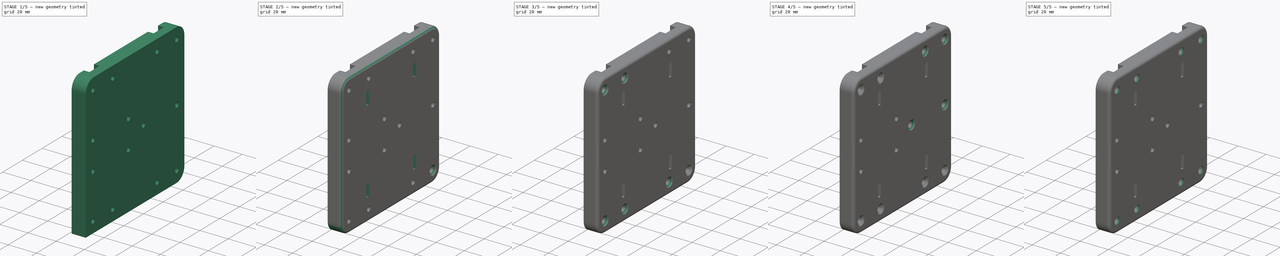
[diagram: build sequence overview — one tinted view per stage of 5, left to right]
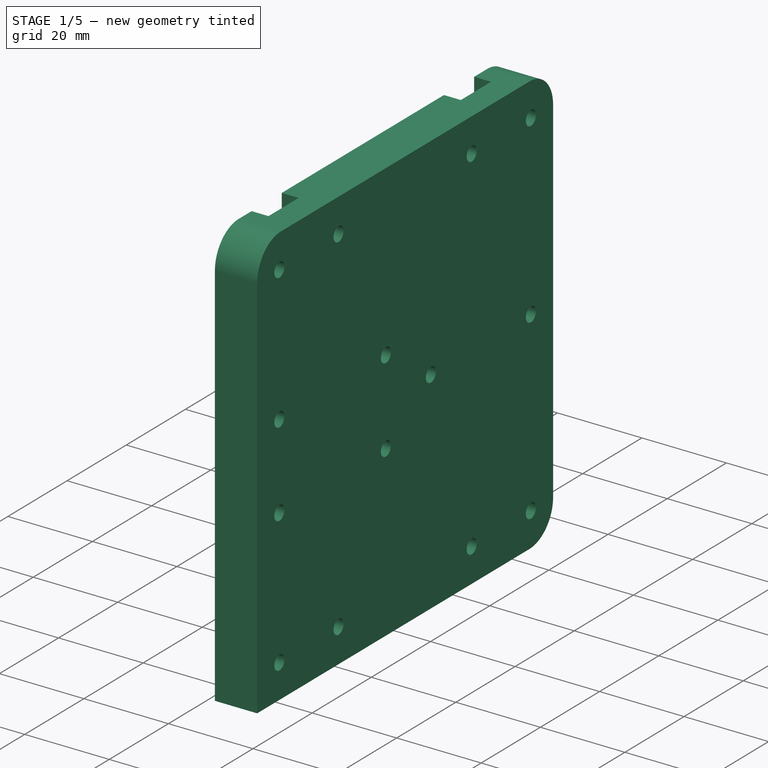
[diagram: stage 1 of 5 — iso view after this stage's code; geometry added in this stage tinted green]
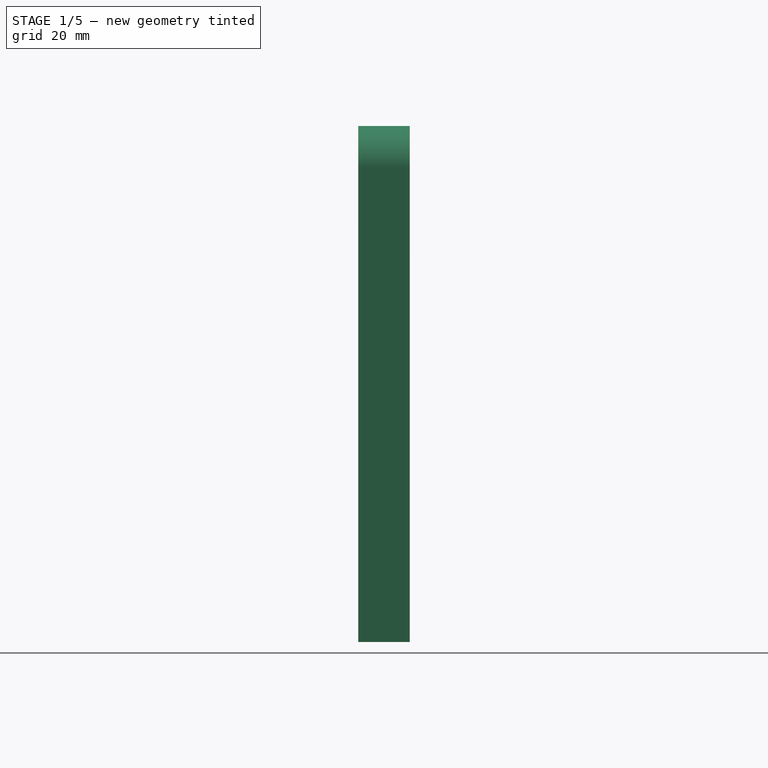
[diagram: stage 1 of 5 — front view after this stage's code; geometry added in this stage tinted green]
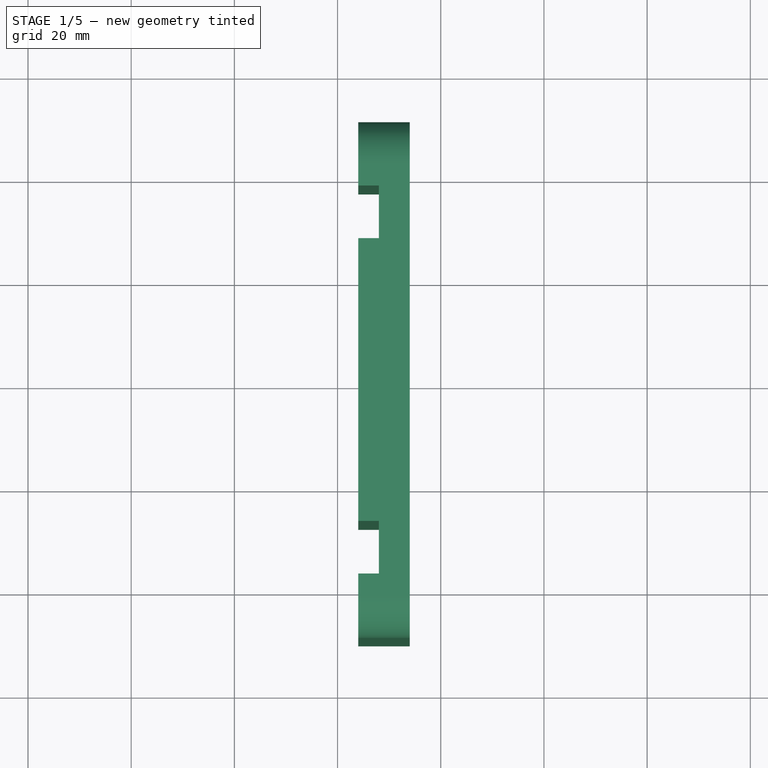
[diagram: stage 1 of 5 — top view after this stage's code; geometry added in this stage tinted green]
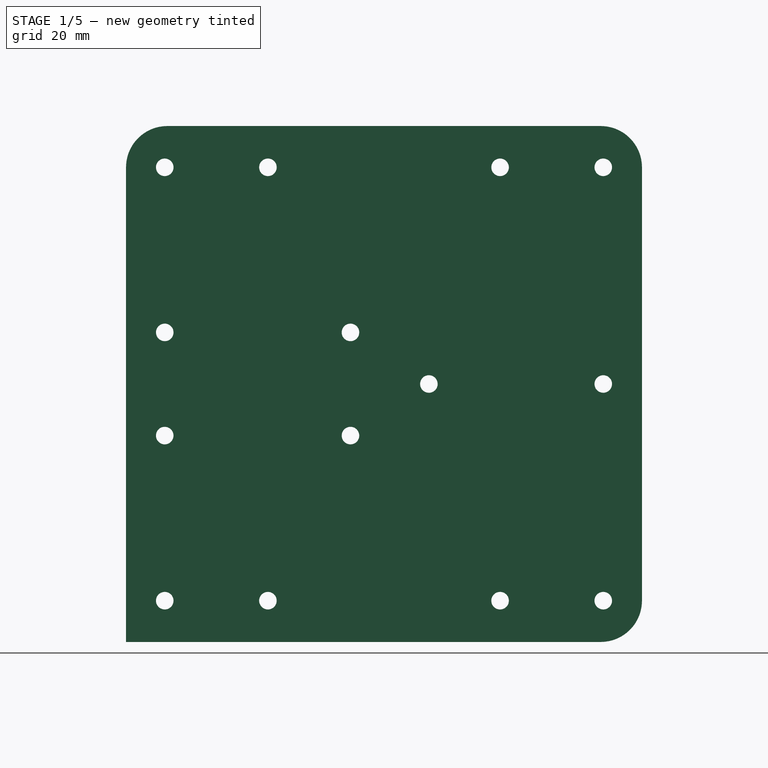
[diagram: stage 1 of 5 — right view after this stage's code; geometry added in this stage tinted green]
FCSTD DOCUMENT  (FreeCAD 0.16R6706 (Git))
Label: BatteryMount
License: All rights reserved
LicenseURL: http://en.wikipedia.org/wiki/All_rights_reserved
objects: PartDesign::Chamfer×14, PartDesign::Fillet×5, Sketcher::SketchObject×4, PartDesign::Pocket×3, PartDesign::Pad×1
note: 31 computed .brp shape members not serialized (recipe doc carries the construction recipe); baked Part::Feature solids carry a one-line shape summary decoded from their .brp

FEATURE [Sketcher::SketchObject] Sketch001
  Placement = pos=(-86,0,0) rot=(0.57735,-0.57735,-0.57735;2.0944rad)
  sketch-geometry (36):
    g0: LineSegment StartX=-50 StartY=50 StartZ=0 EndX=50 EndY=50 EndZ=0
    g1: LineSegment StartX=50 StartY=50 StartZ=0 EndX=50 EndY=-50 EndZ=0
    g2: LineSegment StartX=50 StartY=-50 StartZ=0 EndX=-50 EndY=-50 EndZ=0
    g3: LineSegment StartX=-50 StartY=-50 StartZ=0 EndX=-50 EndY=50 EndZ=0
    g4: Circle CenterX=42.5 CenterY=42 CenterZ=0 NormalX=0 NormalY=0 NormalZ=1 Radius=1.7
    g5: Circle CenterX=42.5 CenterY=-42 CenterZ=0 NormalX=0 NormalY=0 NormalZ=1 Radius=1.7
    g6: Circle CenterX=22.5 CenterY=42 CenterZ=0 NormalX=0 NormalY=0 NormalZ=1 Radius=1.7
    g7: Circle CenterX=22.5 CenterY=-42 CenterZ=0 NormalX=0 NormalY=0 NormalZ=1 Radius=1.7
    g8: Circle CenterX=-22.5 CenterY=42 CenterZ=0 NormalX=0 NormalY=0 NormalZ=1 Radius=1.7
    g9: Circle CenterX=-42.5 CenterY=42 CenterZ=0 NormalX=0 NormalY=0 NormalZ=1 Radius=1.7
    g10: Circle CenterX=-42.5 CenterY=-42 CenterZ=0 NormalX=0 NormalY=0 NormalZ=1 Radius=1.7
    g11: Circle CenterX=-22.5 CenterY=-42 CenterZ=0 NormalX=0 NormalY=0 NormalZ=1 Radius=1.7
    g12: LineSegment [constr] StartX=42.5 StartY=42 StartZ=0 EndX=-42.5 EndY=42 EndZ=0
    g13: LineSegment [constr] StartX=-42.5 StartY=42 StartZ=0 EndX=-42.5 EndY=-42 EndZ=0
    g14: LineSegment [constr] StartX=-42.5 StartY=-42 StartZ=0 EndX=42.5 EndY=-42 EndZ=0
    g15: LineSegment [constr] StartX=42.5 StartY=-42 StartZ=0 EndX=42.5 EndY=42 EndZ=0
    g16: LineSegment [constr] StartX=-22.5 StartY=-42 StartZ=0 EndX=-22.5 EndY=42 EndZ=0
    g17: LineSegment [constr] StartX=22.5 StartY=42 StartZ=0 EndX=22.5 EndY=-42 EndZ=0
    g18: GeomPoint [constr] X=-32.5 Y=42 Z=0
    g19: GeomPoint [constr] X=32.5 Y=42 Z=0
    g20: LineSegment [constr] StartX=42.5 StartY=10 StartZ=0 EndX=6.5 EndY=10 EndZ=0
    g21: LineSegment [constr] StartX=6.5 StartY=10 StartZ=0 EndX=6.5 EndY=-10 EndZ=0
    g22: LineSegment [constr] StartX=6.5 StartY=-10 StartZ=0 EndX=42.5 EndY=-10 EndZ=0
    g23: LineSegment [constr] StartX=42.5 StartY=-10 StartZ=0 EndX=42.5 EndY=10 EndZ=0
    g24: Circle CenterX=6.5 CenterY=10 CenterZ=0 NormalX=0 NormalY=0 NormalZ=1 Radius=1.7
    g25: Circle CenterX=42.5 CenterY=10 CenterZ=0 NormalX=0 NormalY=0 NormalZ=1 Radius=1.7
    g26: Circle CenterX=6.5 CenterY=-10 CenterZ=0 NormalX=0 NormalY=0 NormalZ=1 Radius=1.7
    g27: Circle CenterX=42.5 CenterY=-10 CenterZ=0 NormalX=0 NormalY=0 NormalZ=1 Radius=1.7
    g28: Circle CenterX=-42.5 CenterY=0 CenterZ=0 NormalX=0 NormalY=0 NormalZ=1 Radius=1.7
    g29: Circle CenterX=-8.7 CenterY=0 CenterZ=0 NormalX=0 NormalY=0 NormalZ=1 Radius=1.7
    g30: LineSegment [constr] StartX=-42.5 StartY=0 StartZ=0 EndX=-8.7 EndY=0 EndZ=0
    g31: LineSegment [constr] StartX=-46.6 StartY=21 StartZ=0 EndX=-4.6 EndY=21 EndZ=0
    g32: LineSegment [constr] StartX=-4.6 StartY=21 StartZ=0 EndX=-4.6 EndY=-21 EndZ=0
    g33: LineSegment [constr] StartX=-4.6 StartY=-21 StartZ=0 EndX=-46.6 EndY=-21 EndZ=0
    g34: LineSegment [constr] StartX=-46.6 StartY=-21 StartZ=0 EndX=-46.6 EndY=21 EndZ=0
    g35: GeomPoint [constr] X=-25.6 Y=0 Z=0
  constraints (90):
    c: Coincident(g0,g1)
    c: Coincident(g1,g2)
    c: Coincident(g2,g3)
    c: Coincident(g3,g0)
    c: Horizontal(g0)
    c: Horizontal(g2)
    c: Vertical(g1)
    c: Vertical(g3)
    c: Symmetric(g2,g1,g-2)
    c: DistanceX(g2,g1) = 100
    c: Coincident(g12,g13)
    c: Coincident(g13,g14)
    c: Coincident(g14,g15)
    c: Coincident(g15,g12)
    c: Horizontal(g12)
    c: Vertical(g13)
    c: Vertical(g15)
    c: Coincident(g12,g4)
    c: Coincident(g13,g10)
    c: Coincident(g12,g9)
    c: Coincident(g5,g14)
    c: Coincident(g16,g11)
    c: Coincident(g16,g8)
    c: Vertical(g16)
    c: Coincident(g17,g6)
    c: Coincident(g17,g7)
    c: Vertical(g17)
    c: PointOnObject(g7,g14)
    c: PointOnObject(g6,g12)
    c: PointOnObject(g8,g12)
    c: PointOnObject(g11,g14)
    c: Radius(g10) = 1.7
    c: Equal(g10,g8)
    c: Equal(g10,g11)
    c: Equal(g10,g6)
    c: Equal(g10,g7)
    c: Equal(g10,g5)
    c: Symmetric(g11,g7,g-2)
    c: Symmetric(g10,g5,g-2)
    c: DistanceX(g7,g5) = 20
    c: Symmetric(g8,g9,g18)
    c: Symmetric(g4,g6,g19)
    c: DistanceX(g18,g19) = 65
    c: DistanceY(g2,g0) = 100
    c: DistanceY(g2,g10) = 8
    c: DistanceY(g9,g0) = 8
    c: Symmetric(g2,g0,g-1)
    c: Coincident(g20,g21)
    c: Coincident(g21,g22)
    c: Coincident(g22,g23)
    c: Coincident(g23,g20)
    c: Horizontal(g20)
    c: Horizontal(g22)
    c: Vertical(g21)
    c: Vertical(g23)
    c: DistanceX(g20,g20) = 36
    c: DistanceY(g21,g21) = 20
    c: Coincident(g24,g20)
    c: Coincident(g25,g20)
    c: Coincident(g26,g21)
    c: Coincident(g27,g22)
    c: Radius(g25) = 1.7
    c: Equal(g25,g27)
    c: Equal(g25,g26)
    c: Equal(g25,g24)
    c: DistanceX(g20,g0) = 7.5
    c: Symmetric(g21,g20,g-1)
    c: PointOnObject(g22,g15)
    c: Radius(g29) = 1.7
    c: Equal(g29,g28)
    c: Coincident(g30,g28)
    c: Coincident(g30,g29)
    c: Horizontal(g30)
    c: DistanceX(g28,g29) = 33.8
    c: PointOnObject(g28,g-1)
    c: PointOnObject(g28,g13)
    c: Coincident(g31,g32)
    c: Coincident(g32,g33)
    c: Coincident(g33,g34)
    c: Coincident(g34,g31)
    c: Horizontal(g31)
    c: Horizontal(g33)
    c: Vertical(g32)
    c: Vertical(g34)
    c: DistanceY(g33,g31) = 42
    c: Equal(g31,g34)
    c: Symmetric(g29,g28,g35)
    c: Symmetric(g33,g31,g35)
    c: Equal(g9,g6)
    c: Equal(g6,g4)
FEATURE [PartDesign::Pad] Pad
  Length = 10
  Length2 = 100
  Placement = pos=(-86,0,0) rot=(0.57735,-0.57735,-0.57735;2.0944rad)
  Sketch = -> Sketch001
  Type = 0
FEATURE [Sketcher::SketchObject] Sketch004  label="Sketch002"
  Placement = pos=(-96,0,0) rot=(0.57735,-0.57735,-0.57735;2.0944rad)
  Support = -> Pad [Face20]
  sketch-geometry (12):
    g0: LineSegment StartX=-37.6 StartY=50 StartZ=0 EndX=-27.4 EndY=50 EndZ=0
    g1: LineSegment StartX=-27.4 StartY=50 StartZ=0 EndX=-27.4 EndY=-50 EndZ=0
    g2: LineSegment StartX=-27.4 StartY=-50 StartZ=0 EndX=-37.6 EndY=-50 EndZ=0
    g3: LineSegment StartX=-37.6 StartY=-50 StartZ=0 EndX=-37.6 EndY=50 EndZ=0
    g4: LineSegment StartX=27.4 StartY=50 StartZ=0 EndX=37.6 EndY=50 EndZ=0
    g5: LineSegment StartX=37.6 StartY=50 StartZ=0 EndX=37.6 EndY=-50 EndZ=0
    g6: LineSegment StartX=37.6 StartY=-50 StartZ=0 EndX=27.4 EndY=-50 EndZ=0
    g7: LineSegment StartX=27.4 StartY=-50 StartZ=0 EndX=27.4 EndY=50 EndZ=0
    g8: LineSegment [constr] StartX=-27.4 StartY=-50 StartZ=0 EndX=27.4 EndY=-50 EndZ=0
    g9: LineSegment [constr] StartX=-27.4 StartY=50 StartZ=0 EndX=27.4 EndY=50 EndZ=0
    g10: GeomPoint [constr] X=-32.5 Y=50 Z=0
    g11: GeomPoint [constr] X=32.5 Y=50 Z=0
  constraints (30):
    c: Coincident(g0,g1)
    c: Coincident(g1,g2)
    c: Coincident(g2,g3)
    c: Coincident(g3,g0)
    c: Horizontal(g0)
    c: Horizontal(g2)
    c: Vertical(g1)
    c: Vertical(g3)
    c: Coincident(g4,g5)
    c: Coincident(g5,g6)
    c: Coincident(g6,g7)
    c: Coincident(g7,g4)
    c: Horizontal(g4)
    c: Horizontal(g6)
    c: Vertical(g5)
    c: Vertical(g7)
    c: DistanceX(g0,g0) = 10.2
    c: DistanceX(g4,g4) = 10.2
    c: Coincident(g8,g1)
    c: Horizontal(g8)
    c: Coincident(g6,g8)
    c: Coincident(g9,g0)
    c: Horizontal(g9)
    c: Coincident(g9,g4)
    c: DistanceY(g2,g0) = 100
    c: Symmetric(g4,g4,g11)
    c: Symmetric(g0,g0,g10)
    c: DistanceX(g10,g11) = 65
    c: Symmetric(g4,g0,g-2)
    c: Symmetric(g1,g0,g-1)
FEATURE [PartDesign::Pocket] Pocket
  Length = 4
  Placement = pos=(-86,0,0) rot=(0.57735,-0.57735,-0.57735;2.0944rad)
  Sketch = -> Sketch004
  Type = 0
FEATURE [PartDesign::Fillet] Fillet
  Base = -> Pocket [Edge2]
  Placement = pos=(-86,0,0) rot=(0.57735,-0.57735,-0.57735;2.0944rad)
  Radius = 8
FEATURE [PartDesign::Fillet] Fillet001
  Base = -> Fillet [Edge33]
  Placement = pos=(-86,0,0) rot=(0.57735,-0.57735,-0.57735;2.0944rad)
  Radius = 8
FEATURE [PartDesign::Fillet] Fillet002
  Base = -> Fillet001 [Edge22]
  Placement = pos=(-86,0,0) rot=(0.57735,-0.57735,-0.57735;2.0944rad)
  Radius = 8
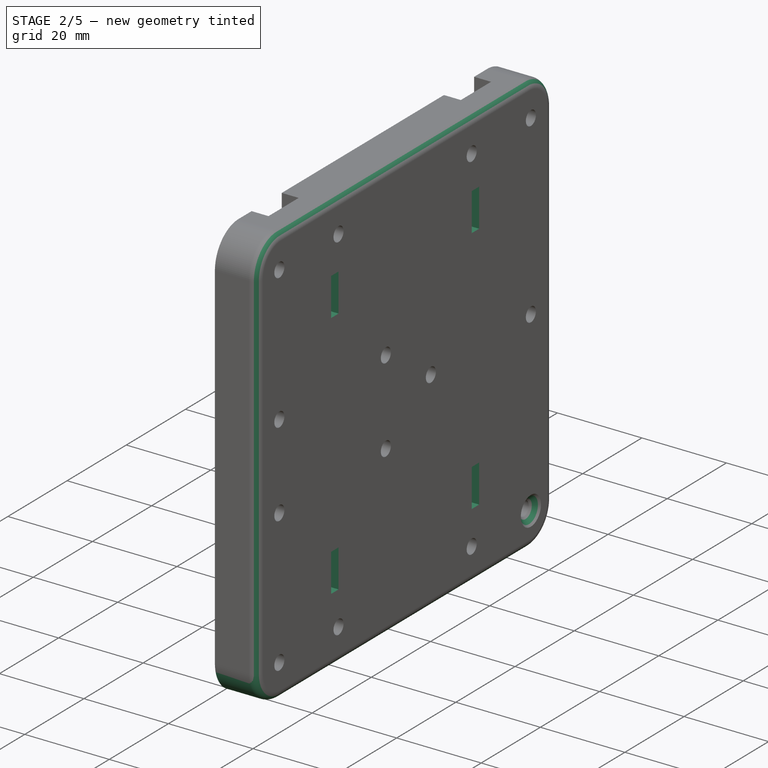
[diagram: stage 2 of 5 — iso view after this stage's code; geometry added in this stage tinted green]
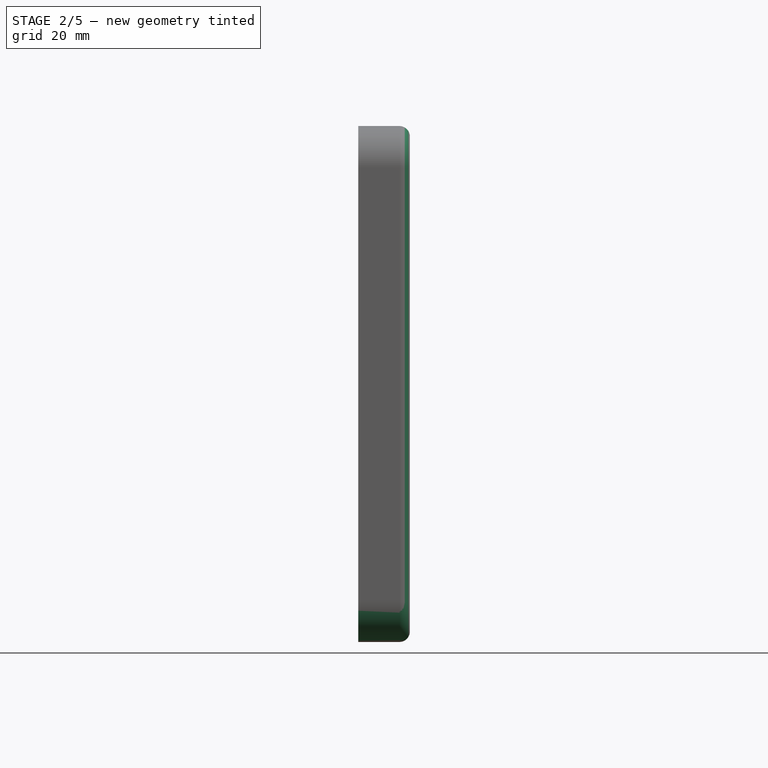
[diagram: stage 2 of 5 — front view after this stage's code; geometry added in this stage tinted green]
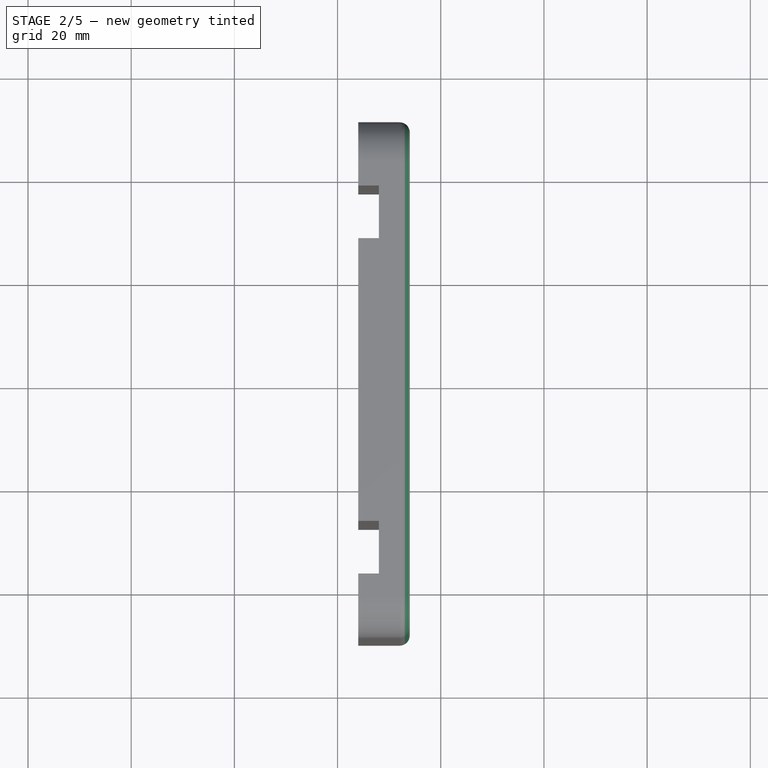
[diagram: stage 2 of 5 — top view after this stage's code; geometry added in this stage tinted green]
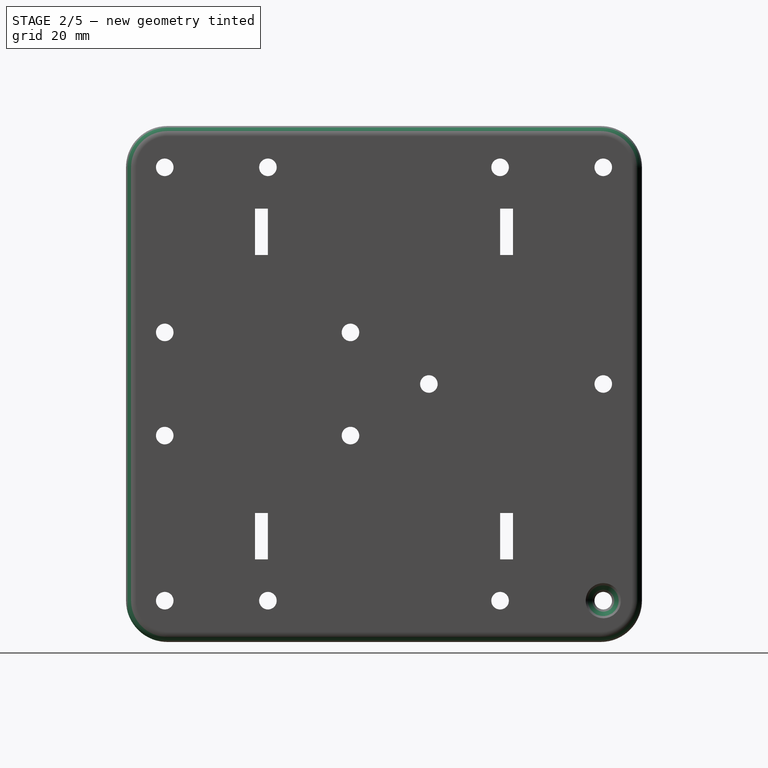
[diagram: stage 2 of 5 — right view after this stage's code; geometry added in this stage tinted green]
FEATURE [PartDesign::Fillet] Fillet003
  Base = -> Fillet002 [Edge39]
  Placement = pos=(-86,0,0) rot=(0.57735,-0.57735,-0.57735;2.0944rad)
  Radius = 8
FEATURE [PartDesign::Fillet] Fillet004
  Base = -> Fillet003 [Edge1]
  Placement = pos=(-86,0,0) rot=(0.57735,-0.57735,-0.57735;2.0944rad)
  Radius = 2
FEATURE [Sketcher::SketchObject] Sketch
  Placement = pos=(-86,0,0) rot=(-0.57735,0.57735,-0.57735;2.0944rad)
  Support = -> Fillet004 [Face1]
  sketch-geometry (22):
    g0: LineSegment StartX=-25 StartY=34 StartZ=0 EndX=-22.5 EndY=34 EndZ=0
    g1: LineSegment StartX=-22.5 StartY=34 StartZ=0 EndX=-22.5 EndY=25 EndZ=0
    g2: LineSegment StartX=-22.5 StartY=25 StartZ=0 EndX=-25 EndY=25 EndZ=0
    g3: LineSegment StartX=-25 StartY=25 StartZ=0 EndX=-25 EndY=34 EndZ=0
    g4: LineSegment StartX=22.5 StartY=34 StartZ=0 EndX=25 EndY=34 EndZ=0
    g5: LineSegment StartX=25 StartY=34 StartZ=0 EndX=25 EndY=25 EndZ=0
    g6: LineSegment StartX=25 StartY=25 StartZ=0 EndX=22.5 EndY=25 EndZ=0
    g7: LineSegment StartX=22.5 StartY=25 StartZ=0 EndX=22.5 EndY=34 EndZ=0
    g8: LineSegment StartX=-25 StartY=-25 StartZ=0 EndX=-22.5 EndY=-25 EndZ=0
    g9: LineSegment StartX=-22.5 StartY=-25 StartZ=0 EndX=-22.5 EndY=-34 EndZ=0
    g10: LineSegment StartX=-22.5 StartY=-34 StartZ=0 EndX=-25 EndY=-34 EndZ=0
    g11: LineSegment StartX=-25 StartY=-34 StartZ=0 EndX=-25 EndY=-25 EndZ=0
    g12: LineSegment StartX=22.5 StartY=-25 StartZ=0 EndX=25 EndY=-25 EndZ=0
    g13: LineSegment StartX=25 StartY=-25 StartZ=0 EndX=25 EndY=-34 EndZ=0
    g14: LineSegment StartX=25 StartY=-34 StartZ=0 EndX=22.5 EndY=-34 EndZ=0
    g15: LineSegment StartX=22.5 StartY=-34 StartZ=0 EndX=22.5 EndY=-25 EndZ=0
    g16: LineSegment [constr] StartX=25 StartY=25 StartZ=0 EndX=25 EndY=-25 EndZ=0
    g17: LineSegment [constr] StartX=22.5 StartY=-34 StartZ=0 EndX=-22.5 EndY=-34 EndZ=0
    g18: LineSegment [constr] StartX=-25 StartY=-25 StartZ=0 EndX=-25 EndY=25 EndZ=0
    g19: LineSegment [constr] StartX=-22.5 StartY=34 StartZ=0 EndX=22.5 EndY=34 EndZ=0
    g20: LineSegment [constr] StartX=-22.5 StartY=-25 StartZ=0 EndX=-22.5 EndY=25 EndZ=0
    g21: LineSegment [constr] StartX=22.5 StartY=25 StartZ=0 EndX=22.5 EndY=-25 EndZ=0
  constraints (59):
    c: Coincident(g0,g1)
    c: Coincident(g1,g2)
    c: Coincident(g2,g3)
    c: Coincident(g3,g0)
    c: Horizontal(g0)
    c: Horizontal(g2)
    c: Vertical(g1)
    c: Vertical(g3)
    c: Coincident(g4,g5)
    c: Coincident(g5,g6)
    c: Coincident(g6,g7)
    c: Coincident(g7,g4)
    c: Horizontal(g4)
    c: Horizontal(g6)
    c: Vertical(g5)
    c: Vertical(g7)
    c: Coincident(g8,g9)
    c: Coincident(g9,g10)
    c: Coincident(g10,g11)
    c: Coincident(g11,g8)
    c: Horizontal(g8)
    c: Horizontal(g10)
    c: Vertical(g9)
    c: Vertical(g11)
    c: Coincident(g12,g13)
    c: Coincident(g13,g14)
    c: Coincident(g14,g15)
    c: Coincident(g15,g12)
    c: Horizontal(g12)
    c: Horizontal(g14)
    c: Vertical(g13)
    c: Vertical(g15)
    c: DistanceX(g4,g4) = 2.5
    c: Equal(g0,g4)
    c: Equal(g4,g12)
    c: Equal(g12,g8)
    c: Equal(g9,g1)
    c: Equal(g1,g5)
    c: Equal(g5,g13)
    c: DistanceY(g5,g5) = 9
    c: Coincident(g16,g5)
    c: Coincident(g16,g12)
    c: Coincident(g17,g9)
    c: Horizontal(g17)
    c: Coincident(g18,g8)
    c: Coincident(g18,g2)
    c: Coincident(g19,g0)
    c: Coincident(g19,g4)
    c: Horizontal(g19)
    c: Vertical(g16)
    c: Vertical(g18)
    c: Symmetric(g10,g4,g-1)
    c: Coincident(g14,g17)
    c: Coincident(g20,g8)
    c: Coincident(g20,g1)
    c: Coincident(g21,g6)
    c: Coincident(g21,g12)
    c: DistanceX(g9,g14) = 45
    c: DistanceY(g8,g2) = 50
FEATURE [PartDesign::Pocket] Pocket002
  Length = 5
  Placement = pos=(-86,0,0) rot=(0.57735,-0.57735,-0.57735;2.0944rad)
  Sketch = -> Sketch
  Type = 1
FEATURE [PartDesign::Chamfer] Chamfer
  Base = -> Pocket002 [Edge34]
  Placement = pos=(-86,0,0) rot=(0.57735,-0.57735,-0.57735;2.0944rad)
  Size = 1.7
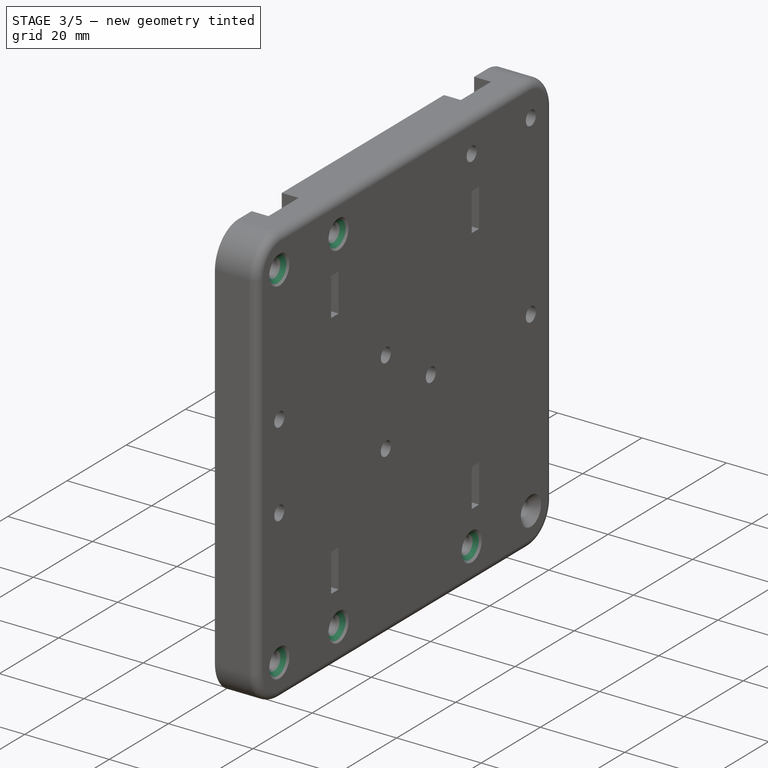
[diagram: stage 3 of 5 — iso view after this stage's code; geometry added in this stage tinted green]
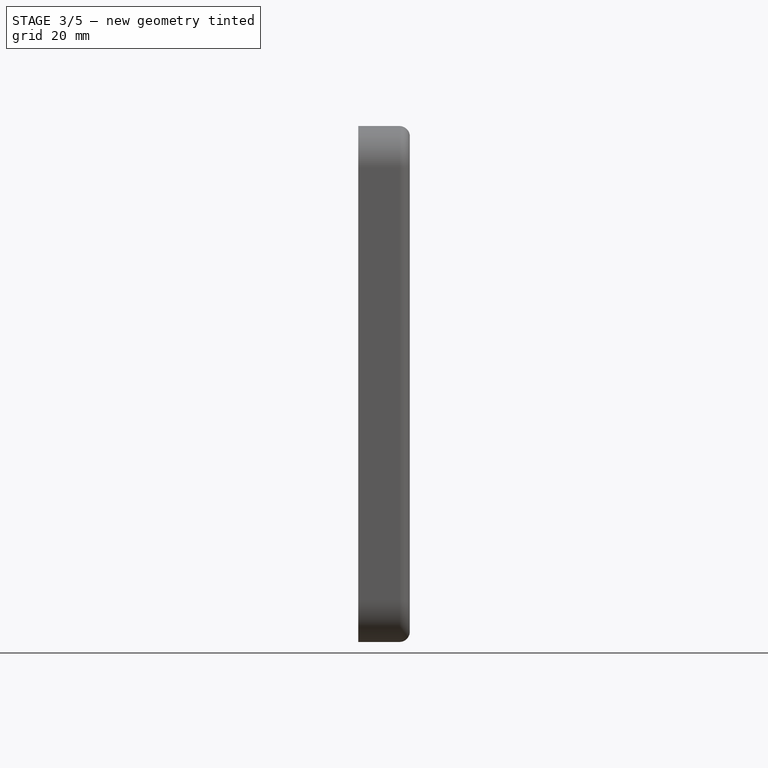
[diagram: stage 3 of 5 — front view after this stage's code; geometry added in this stage tinted green]
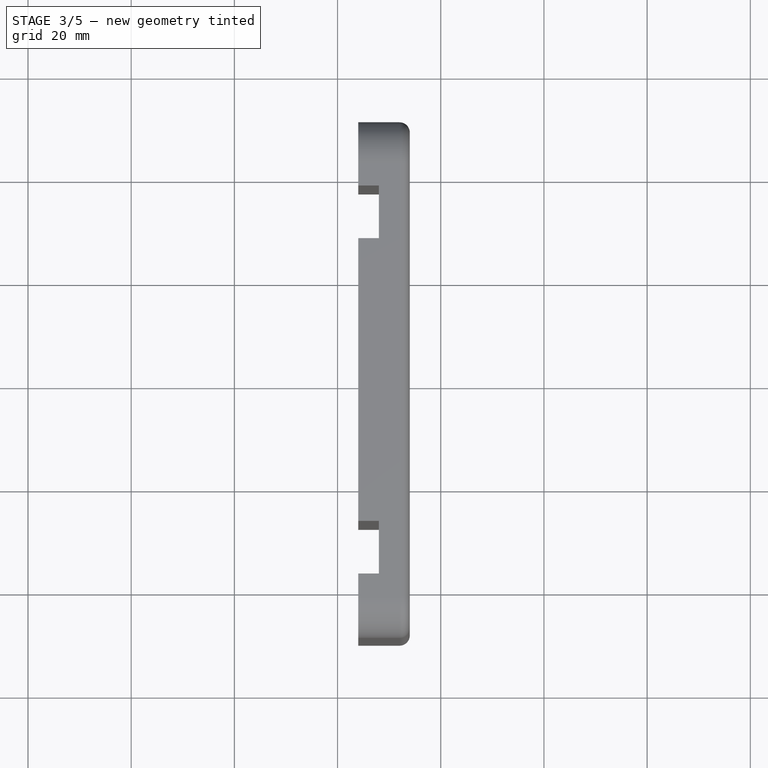
[diagram: stage 3 of 5 — top view after this stage's code; geometry added in this stage tinted green]
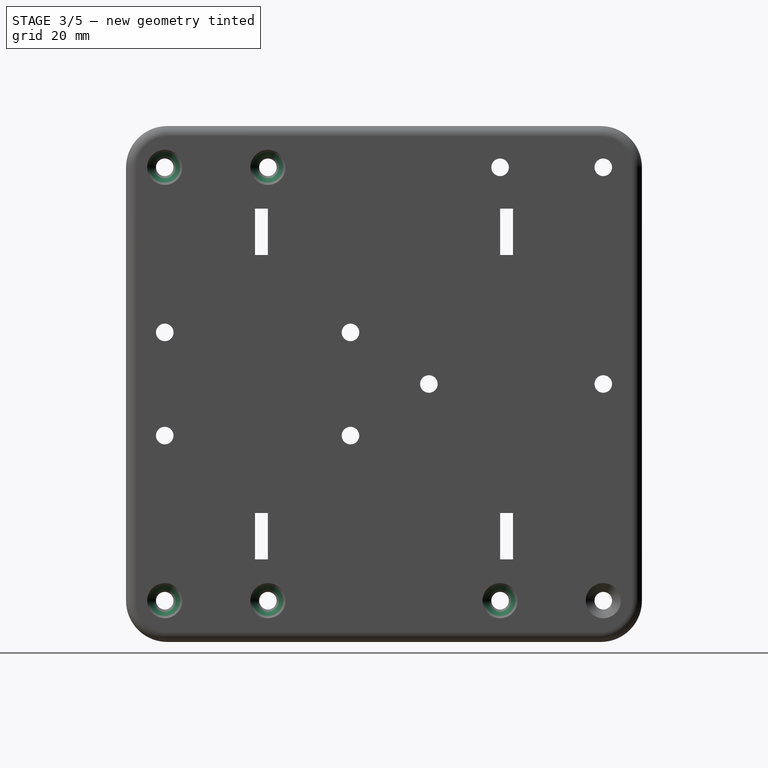
[diagram: stage 3 of 5 — right view after this stage's code; geometry added in this stage tinted green]
FEATURE [PartDesign::Chamfer] Chamfer001
  Base = -> Chamfer [Edge25]
  Placement = pos=(-86,0,0) rot=(0.57735,-0.57735,-0.57735;2.0944rad)
  Size = 1.7
FEATURE [PartDesign::Chamfer] Chamfer002
  Base = -> Chamfer001 [Edge25]
  Placement = pos=(-86,0,0) rot=(0.57735,-0.57735,-0.57735;2.0944rad)
  Size = 1.7
FEATURE [PartDesign::Chamfer] Chamfer003
  Base = -> Chamfer002 [Edge37]
  Placement = pos=(-86,0,0) rot=(0.57735,-0.57735,-0.57735;2.0944rad)
  Size = 1.7
FEATURE [PartDesign::Chamfer] Chamfer004
  Base = -> Chamfer003 [Edge36]
  Placement = pos=(-86,0,0) rot=(0.57735,-0.57735,-0.57735;2.0944rad)
  Size = 1.7
FEATURE [PartDesign::Chamfer] Chamfer005
  Base = -> Chamfer004 [Edge22]
  Placement = pos=(-86,0,0) rot=(0.57735,-0.57735,-0.57735;2.0944rad)
  Size = 1.7
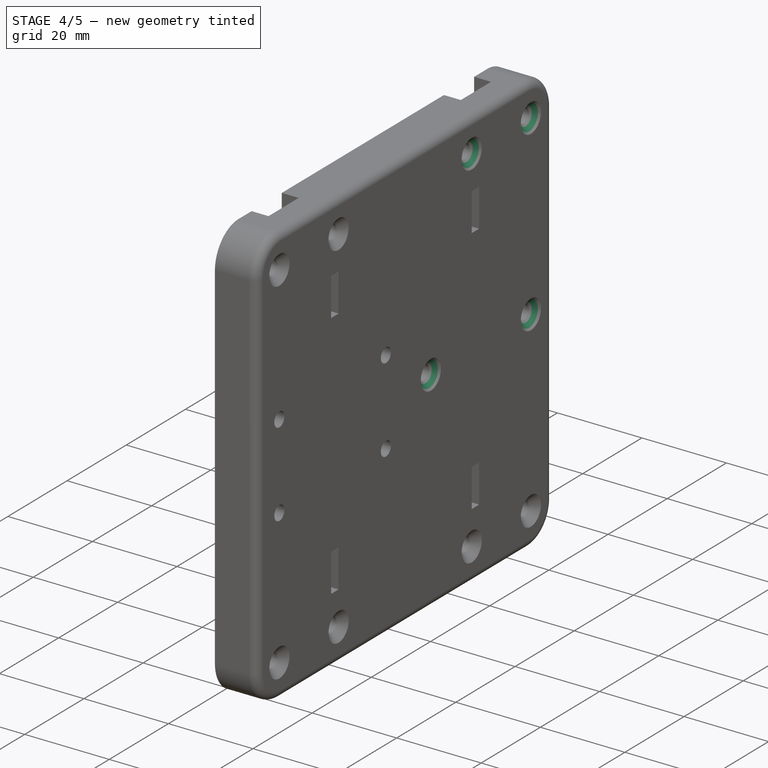
[diagram: stage 4 of 5 — iso view after this stage's code; geometry added in this stage tinted green]
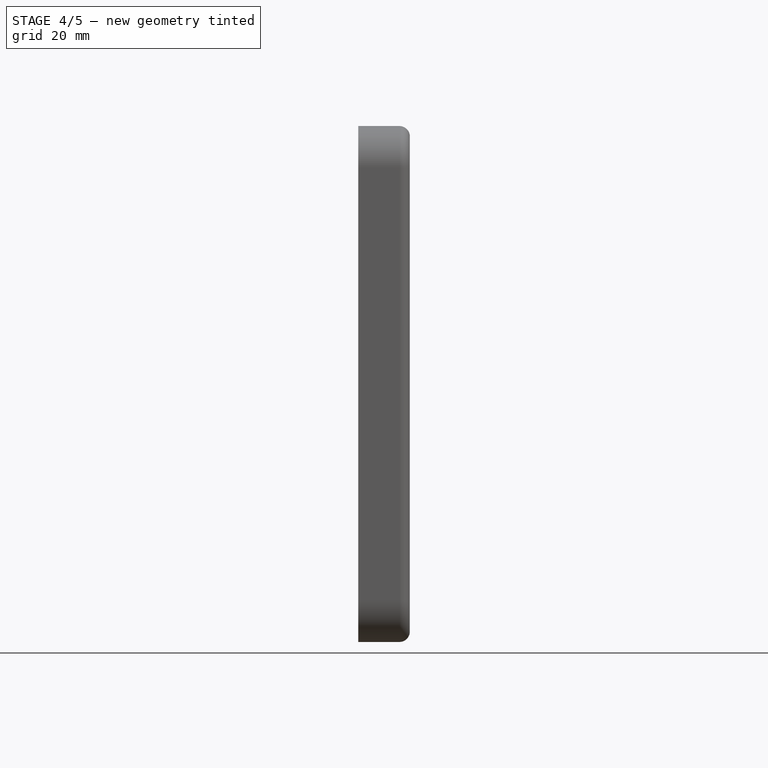
[diagram: stage 4 of 5 — front view after this stage's code; geometry added in this stage tinted green]
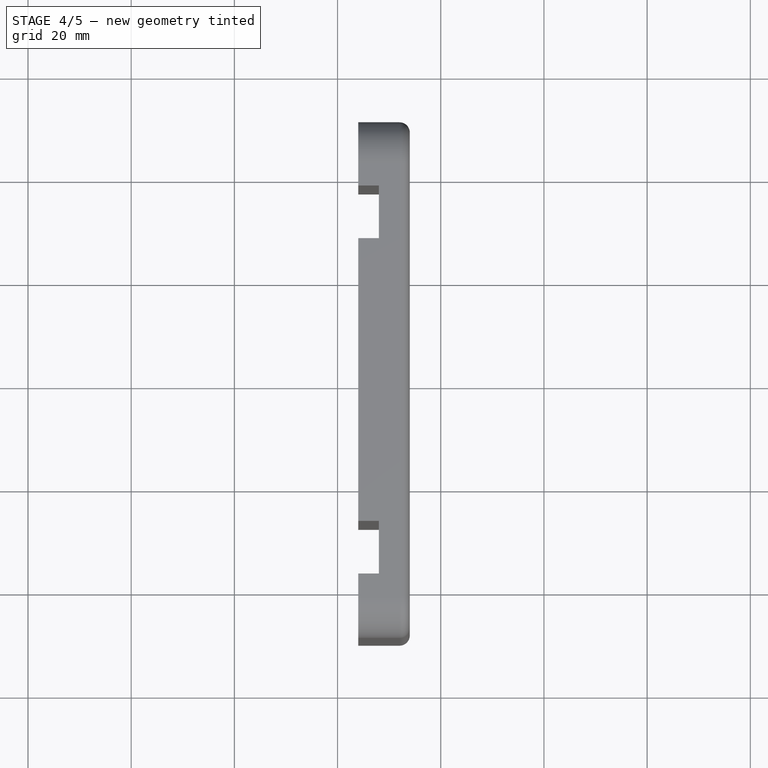
[diagram: stage 4 of 5 — top view after this stage's code; geometry added in this stage tinted green]
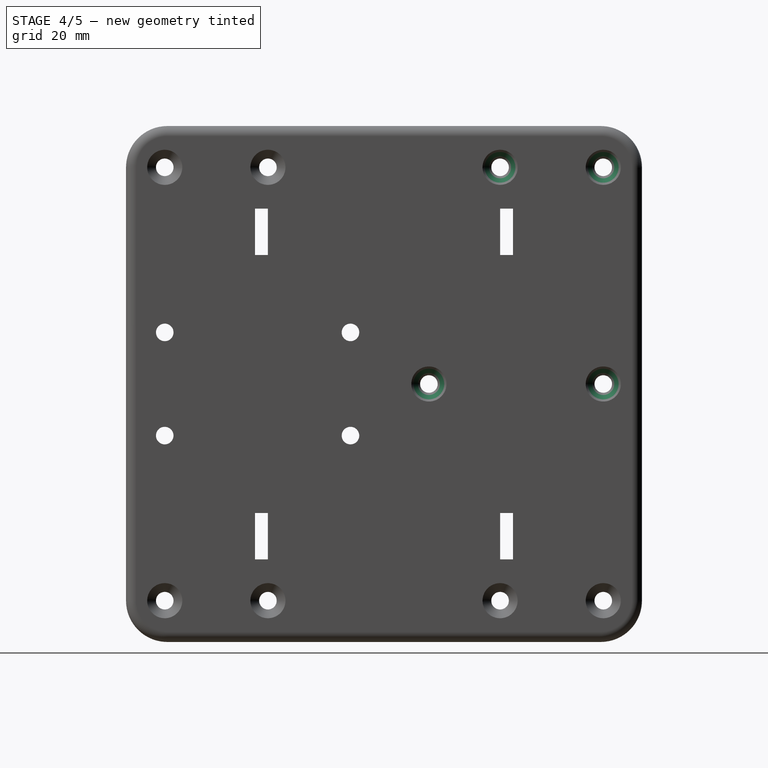
[diagram: stage 4 of 5 — right view after this stage's code; geometry added in this stage tinted green]
FEATURE [PartDesign::Chamfer] Chamfer006
  Base = -> Chamfer005 [Edge18]
  Placement = pos=(-86,0,0) rot=(0.57735,-0.57735,-0.57735;2.0944rad)
  Size = 1.7
FEATURE [PartDesign::Chamfer] Chamfer007
  Base = -> Chamfer006 [Edge18]
  Placement = pos=(-86,0,0) rot=(0.57735,-0.57735,-0.57735;2.0944rad)
  Size = 1.7
FEATURE [PartDesign::Chamfer] Chamfer008
  Base = -> Chamfer007 [Edge18]
  Placement = pos=(-86,0,0) rot=(0.57735,-0.57735,-0.57735;2.0944rad)
  Size = 1.7
FEATURE [PartDesign::Chamfer] Chamfer009
  Base = -> Chamfer008 [Edge18]
  Placement = pos=(-86,0,0) rot=(0.57735,-0.57735,-0.57735;2.0944rad)
  Size = 1.7
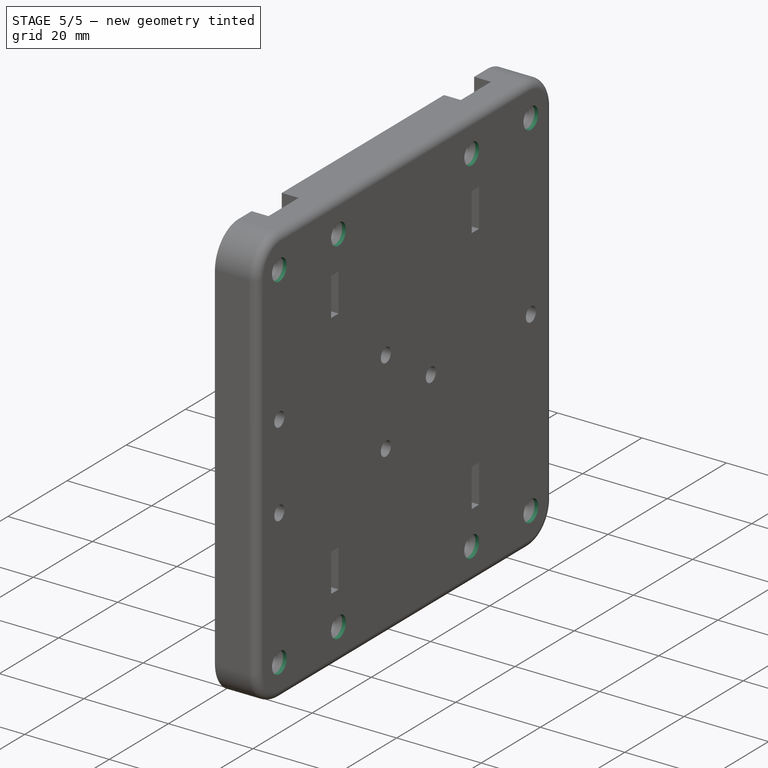
[diagram: stage 5 of 5 — iso view after this stage's code; geometry added in this stage tinted green]
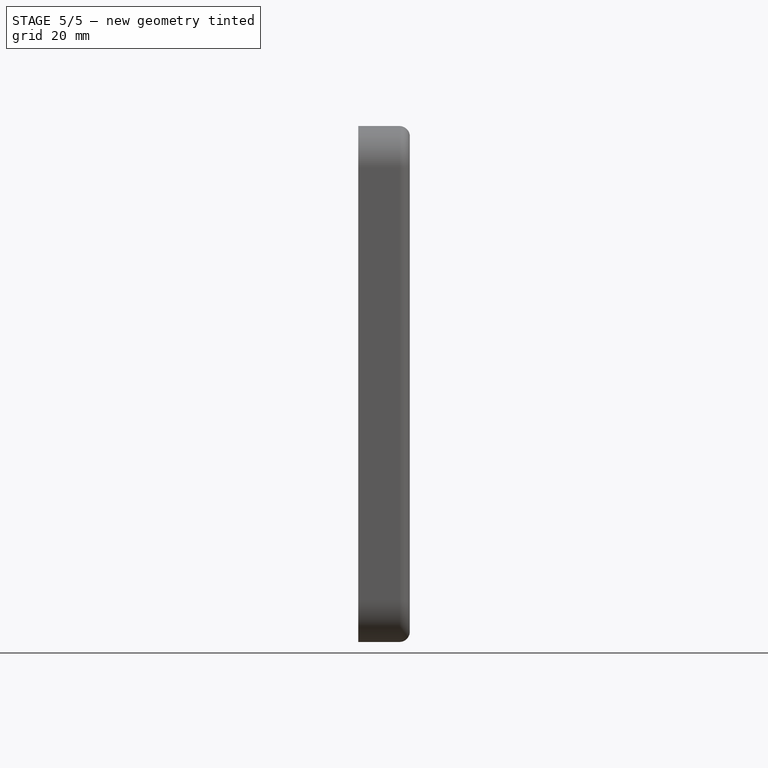
[diagram: stage 5 of 5 — front view after this stage's code; geometry added in this stage tinted green]
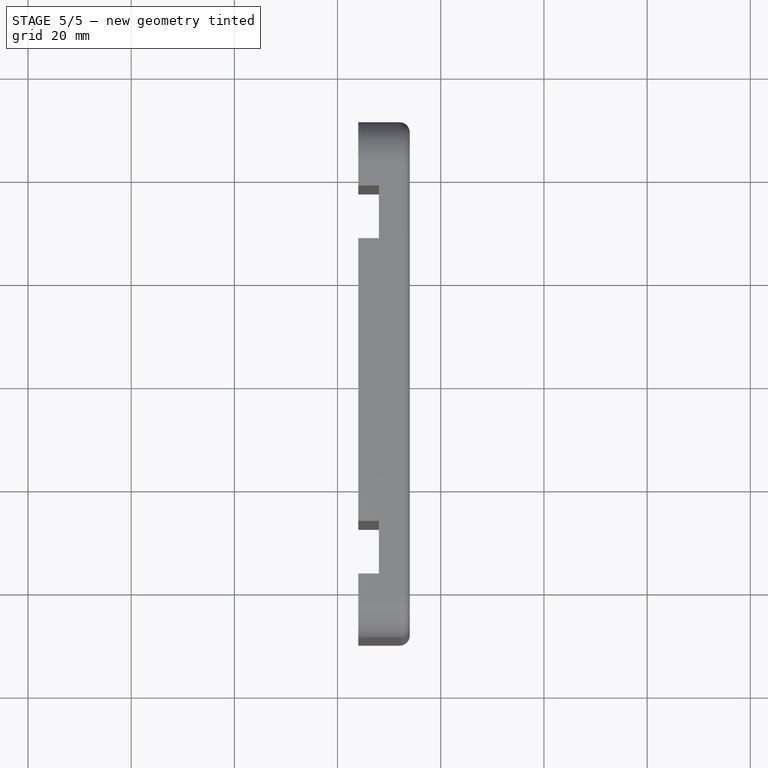
[diagram: stage 5 of 5 — top view after this stage's code; geometry added in this stage tinted green]
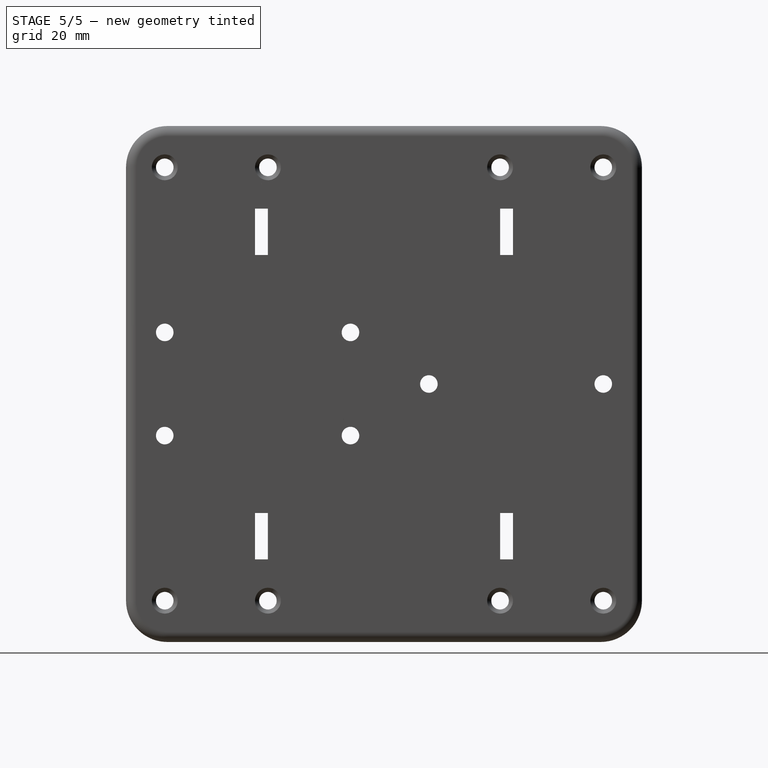
[diagram: stage 5 of 5 — right view after this stage's code; geometry added in this stage tinted green]
FEATURE [Sketcher::SketchObject] Sketch005
  Placement = pos=(-86,0,0) rot=(-0.57735,0.57735,-0.57735;2.0944rad)
  Support = -> Pocket002 [Face1]
  sketch-geometry (36):
    g0: LineSegment [constr] StartX=-50 StartY=50 StartZ=0 EndX=50 EndY=50 EndZ=0
    g1: LineSegment [constr] StartX=50 StartY=50 StartZ=0 EndX=50 EndY=-50 EndZ=0
    g2: LineSegment [constr] StartX=50 StartY=-50 StartZ=0 EndX=-50 EndY=-50 EndZ=0
    g3: LineSegment [constr] StartX=-50 StartY=-50 StartZ=0 EndX=-50 EndY=50 EndZ=0
    g4: Circle CenterX=42.5 CenterY=42 CenterZ=0 NormalX=0 NormalY=0 NormalZ=1 Radius=2.5
    g5: Circle CenterX=42.5 CenterY=-42 CenterZ=0 NormalX=0 NormalY=0 NormalZ=1 Radius=2.5
    g6: Circle CenterX=22.5 CenterY=42 CenterZ=0 NormalX=0 NormalY=0 NormalZ=1 Radius=2.5
    g7: Circle CenterX=22.5 CenterY=-42 CenterZ=0 NormalX=0 NormalY=0 NormalZ=1 Radius=2.5
    g8: Circle CenterX=-22.5 CenterY=42 CenterZ=0 NormalX=0 NormalY=0 NormalZ=1 Radius=2.5
    g9: Circle CenterX=-42.5 CenterY=42 CenterZ=0 NormalX=0 NormalY=0 NormalZ=1 Radius=2.5
    g10: Circle CenterX=-42.5 CenterY=-42 CenterZ=0 NormalX=0 NormalY=0 NormalZ=1 Radius=2.5
    g11: Circle CenterX=-22.5 CenterY=-42 CenterZ=0 NormalX=0 NormalY=0 NormalZ=1 Radius=2.5
    g12: LineSegment [constr] StartX=42.5 StartY=42 StartZ=0 EndX=-42.5 EndY=42 EndZ=0
    g13: LineSegment [constr] StartX=-42.5 StartY=42 StartZ=0 EndX=-42.5 EndY=-42 EndZ=0
    g14: LineSegment [constr] StartX=-42.5 StartY=-42 StartZ=0 EndX=42.5 EndY=-42 EndZ=0
    g15: LineSegment [constr] StartX=42.5 StartY=-42 StartZ=0 EndX=42.5 EndY=42 EndZ=0
    g16: LineSegment [constr] StartX=-22.5 StartY=-42 StartZ=0 EndX=-22.5 EndY=42 EndZ=0
    g17: LineSegment [constr] StartX=22.5 StartY=42 StartZ=0 EndX=22.5 EndY=-42 EndZ=0
    g18: GeomPoint [constr] X=-32.5 Y=42 Z=0
    g19: GeomPoint [constr] X=32.5 Y=42 Z=0
    g20: LineSegment [constr] StartX=42.5 StartY=10 StartZ=0 EndX=6.5 EndY=10 EndZ=0
    g21: LineSegment [constr] StartX=6.5 StartY=10 StartZ=0 EndX=6.5 EndY=-10 EndZ=0
    g22: LineSegment [constr] StartX=6.5 StartY=-10 StartZ=0 EndX=42.5 EndY=-10 EndZ=0
    g23: LineSegment [constr] StartX=42.5 StartY=-10 StartZ=0 EndX=42.5 EndY=10 EndZ=0
    g24: Circle [constr] CenterX=6.5 CenterY=10 CenterZ=0 NormalX=0 NormalY=0 NormalZ=1 Radius=1.7
    g25: Circle [constr] CenterX=42.5 CenterY=10 CenterZ=0 NormalX=0 NormalY=0 NormalZ=1 Radius=1.7
    g26: Circle [constr] CenterX=6.5 CenterY=-10 CenterZ=0 NormalX=0 NormalY=0 NormalZ=1 Radius=1.7
    g27: Circle [constr] CenterX=42.5 CenterY=-10 CenterZ=0 NormalX=0 NormalY=0 NormalZ=1 Radius=1.7
    g28: Circle [constr] CenterX=-42.5 CenterY=0 CenterZ=0 NormalX=0 NormalY=0 NormalZ=1 Radius=1.7
    g29: Circle [constr] CenterX=-13.75 CenterY=0 CenterZ=0 NormalX=0 NormalY=0 NormalZ=1 Radius=1.7
    g30: LineSegment [constr] StartX=-42.5 StartY=0 StartZ=0 EndX=-13.75 EndY=0 EndZ=0
    g31: LineSegment [constr] StartX=-46.575 StartY=18.45 StartZ=0 EndX=-9.675 EndY=18.45 EndZ=0
    g32: LineSegment [constr] StartX=-9.675 StartY=18.45 StartZ=0 EndX=-9.675 EndY=-18.45 EndZ=0
    g33: LineSegment [constr] StartX=-9.675 StartY=-18.45 StartZ=0 EndX=-46.575 EndY=-18.45 EndZ=0
    g34: LineSegment [constr] StartX=-46.575 StartY=-18.45 StartZ=0 EndX=-46.575 EndY=18.45 EndZ=0
    g35: GeomPoint [constr] X=-28.125 Y=0 Z=0
  constraints (90):
    c: Coincident(g0,g1)
    c: Coincident(g1,g2)
    c: Coincident(g2,g3)
    c: Coincident(g3,g0)
    c: Horizontal(g0)
    c: Horizontal(g2)
    c: Vertical(g1)
    c: Vertical(g3)
    c: Symmetric(g2,g1,g-2)
    c: DistanceX(g2,g1) = 100
    c: Coincident(g12,g13)
    c: Coincident(g13,g14)
    c: Coincident(g14,g15)
    c: Coincident(g15,g12)
    c: Horizontal(g12)
    c: Vertical(g13)
    c: Vertical(g15)
    c: Coincident(g12,g4)
    c: Coincident(g13,g10)
    c: Coincident(g12,g9)
    c: Coincident(g5,g14)
    c: Coincident(g16,g11)
    c: Coincident(g16,g8)
    c: Vertical(g16)
    c: Coincident(g17,g6)
    c: Coincident(g17,g7)
    c: Vertical(g17)
    c: PointOnObject(g7,g14)
    c: PointOnObject(g6,g12)
    c: PointOnObject(g8,g12)
    c: PointOnObject(g11,g14)
    c: Radius(g10) = 2.5
    c: Equal(g10,g8)
    c: Equal(g10,g11)
    c: Equal(g10,g6)
    c: Equal(g10,g7)
    c: Equal(g10,g5)
    c: Symmetric(g11,g7,g-2)
    c: Symmetric(g10,g5,g-2)
    c: DistanceX(g7,g5) = 20
    c: Symmetric(g8,g9,g18)
    c: Symmetric(g4,g6,g19)
    c: DistanceX(g18,g19) = 65
    c: DistanceY(g2,g0) = 100
    c: DistanceY(g2,g10) = 8
    c: DistanceY(g9,g0) = 8
    c: Symmetric(g2,g0,g-1)
    c: Coincident(g20,g21)
    c: Coincident(g21,g22)
    c: Coincident(g22,g23)
    c: Coincident(g23,g20)
    c: Horizontal(g20)
    c: Horizontal(g22)
    c: Vertical(g21)
    c: Vertical(g23)
    c: DistanceX(g20,g20) = 36
    c: DistanceY(g21,g21) = 20
    c: Coincident(g24,g20)
    c: Coincident(g25,g20)
    c: Coincident(g26,g21)
    c: Coincident(g27,g22)
    c: Radius(g25) = 1.7
    c: Equal(g25,g27)
    c: Equal(g25,g26)
    c: Equal(g25,g24)
    c: DistanceX(g20,g0) = 7.5
    c: Symmetric(g21,g20,g-1)
    c: PointOnObject(g22,g15)
    c: Radius(g29) = 1.7
    c: Equal(g29,g28)
    c: Coincident(g30,g28)
    c: Coincident(g30,g29)
    c: Horizontal(g30)
    c: DistanceX(g28,g29) = 28.75
    c: PointOnObject(g28,g-1)
    c: PointOnObject(g28,g13)
    c: Coincident(g31,g32)
    c: Coincident(g32,g33)
    c: Coincident(g33,g34)
    c: Coincident(g34,g31)
    c: Horizontal(g31)
    c: Horizontal(g33)
    c: Vertical(g32)
    c: Vertical(g34)
    c: DistanceY(g33,g31) = 36.9
    c: Equal(g31,g34)
    c: Symmetric(g29,g28,g35)
    c: Symmetric(g33,g31,g35)
    c: Equal(g9,g6)
    c: Equal(g6,g4)
FEATURE [PartDesign::Pocket] Pocket001  label="FinalSideA"
  Length = 5
  Placement = pos=(-86,0,0) rot=(0.57735,-0.57735,-0.57735;2.0944rad)
  Sketch = -> Sketch005
  Type = 0
FEATURE [PartDesign::Chamfer] Chamfer010
  Base = -> Chamfer009 [Edge32]
  Placement = pos=(-86,0,0) rot=(0.57735,-0.57735,-0.57735;2.0944rad)
  Size = 1.7
FEATURE [PartDesign::Chamfer] Chamfer011
  Base = -> Chamfer010 [Edge28]
  Placement = pos=(-86,0,0) rot=(0.57735,-0.57735,-0.57735;2.0944rad)
  Size = 1.7
FEATURE [PartDesign::Chamfer] Chamfer012
  Base = -> Chamfer011 [Edge38]
  Placement = pos=(-86,0,0) rot=(0.57735,-0.57735,-0.57735;2.0944rad)
  Size = 1.7
FEATURE [PartDesign::Chamfer] Chamfer013  label="FinalSideB"
  Base = -> Chamfer012 [Edge38]
  Placement = pos=(-86,0,0) rot=(0.57735,-0.57735,-0.57735;2.0944rad)
  Size = 1.7
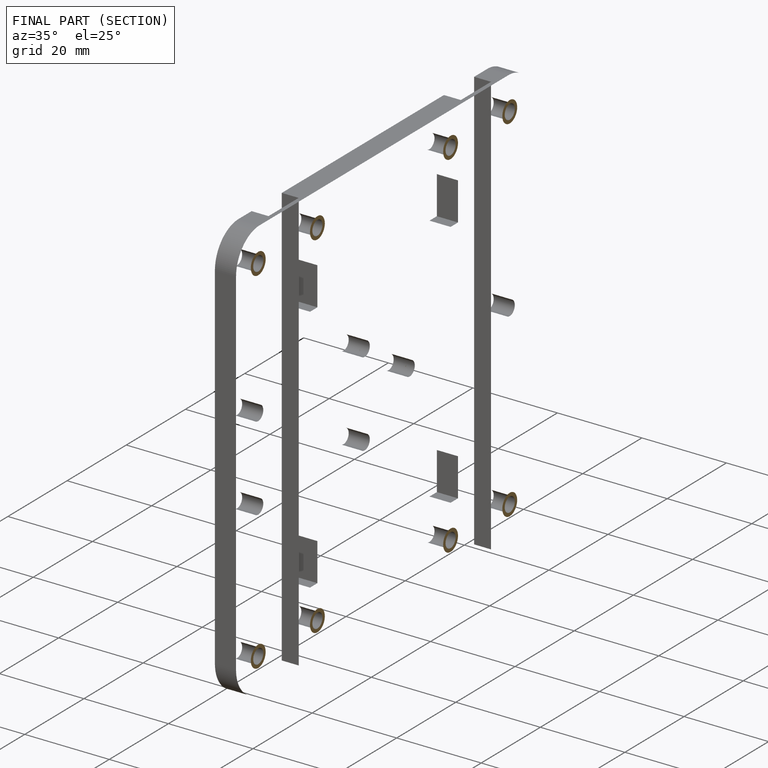
[diagram: finished part — half-section view (interior)]
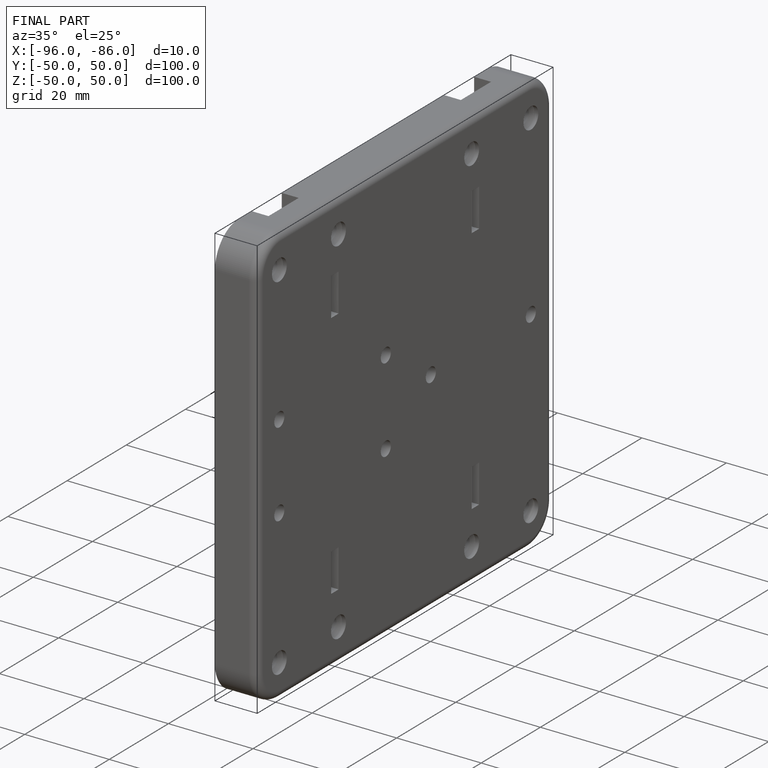
[diagram: finished part — iso view with bounding-box wireframe]
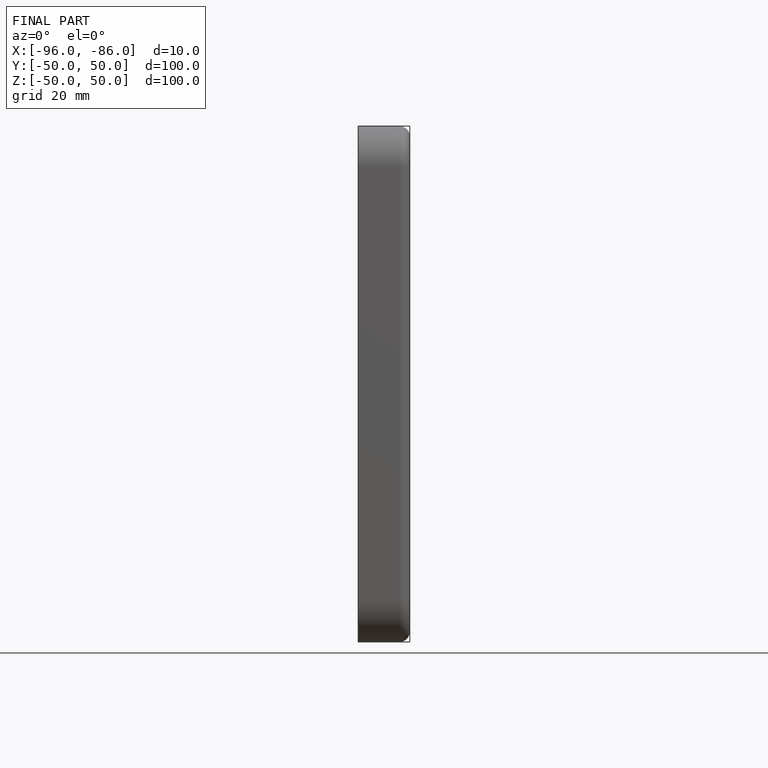
[diagram: finished part — front view with bounding-box wireframe]
